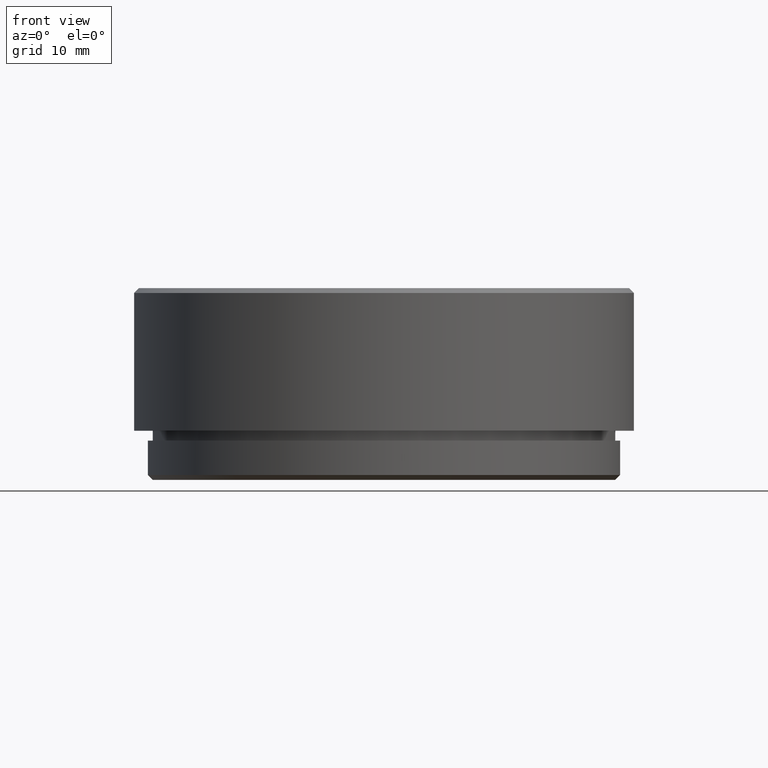
[diagram: clean part render]
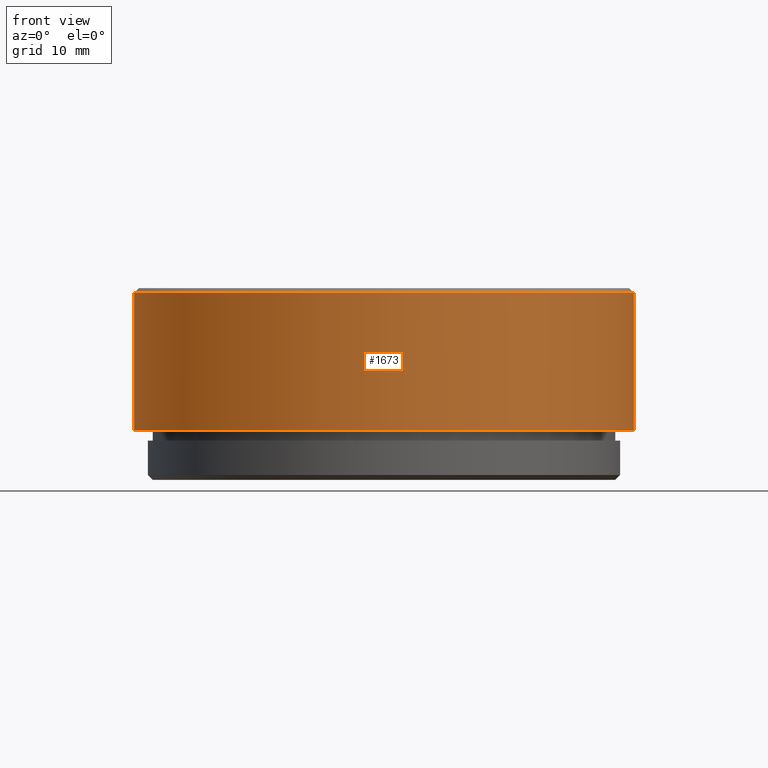
[diagram: same view with one face highlighted and labeled with its STEP entity id]
A machine part, front view. The second image highlights one B-rep face of the part: STEP entity #1673.
In plain terms, the highlighted cylindrical surface (partial cylindrical patch) has radius 25.4 mm, axis along (-0, -0, -1).
Its self-contained STEP definition (entity closure, byte-faithful):
#40 = VECTOR ( 'NONE', #1772, 1000.000000000000000 ) ;
#82 = LINE ( 'NONE', #678, #685 ) ;
#130 = DIRECTION ( 'NONE',  ( 0.000000000000000000, 0.000000000000000000, -1.000000000000000000 ) ) ;
#165 = ORIENTED_EDGE ( 'NONE', *, *, #1254, .T. ) ;
#179 = EDGE_CURVE ( 'NONE', #1473, #1601, #1626, .T. ) ;
#217 = AXIS2_PLACEMENT_3D ( 'NONE', #1438, #130, #720 ) ;
#220 = DIRECTION ( 'NONE',  ( 0.000000000000000000, 0.000000000000000000, -1.000000000000000000 ) ) ;
#244 = CARTESIAN_POINT ( 'NONE',  ( -25.39999999999999858, 0.000000000000000000, 18.99999999999998579 ) ) ;
#295 = CARTESIAN_POINT ( 'NONE',  ( 25.39999999999999858, 3.110602869834276865E-15, 5.000000000000000000 ) ) ;
#461 = DIRECTION ( 'NONE',  ( -1.000000000000000000, 0.000000000000000000, 0.000000000000000000 ) ) ;
#590 = CARTESIAN_POINT ( 'NONE',  ( 25.39999999999999858, 3.110602869834276865E-15, 19.50000000000000000 ) ) ;
#678 = CARTESIAN_POINT ( 'NONE',  ( -25.39999999999999858, 0.000000000000000000, 19.50000000000000000 ) ) ;
#685 = VECTOR ( 'NONE', #972, 1000.000000000000000 ) ;
#720 = DIRECTION ( 'NONE',  ( 1.000000000000000000, 0.000000000000000000, 0.000000000000000000 ) ) ;
#777 = CIRCLE ( 'NONE', #217, 25.39999999999999858 ) ;
#787 = ORIENTED_EDGE ( 'NONE', *, *, #179, .F. ) ;
#828 = VERTEX_POINT ( 'NONE', #244 ) ;
#901 = CARTESIAN_POINT ( 'NONE',  ( -25.39999999999999858, 0.000000000000000000, 5.000000000000000000 ) ) ;
#972 = DIRECTION ( 'NONE',  ( -0.000000000000000000, -0.000000000000000000, -1.000000000000000000 ) ) ;
#1029 = CARTESIAN_POINT ( 'NONE',  ( 0.000000000000000000, 0.000000000000000000, 19.50000000000000000 ) ) ;
#1055 = ORIENTED_EDGE ( 'NONE', *, *, #1395, .T. ) ;
#1195 = CARTESIAN_POINT ( 'NONE',  ( 25.39999999999999858, 3.110602869834276865E-15, 18.99999999999998579 ) ) ;
#1254 = EDGE_CURVE ( 'NONE', #828, #1574, #82, .T. ) ;
#1257 = CARTESIAN_POINT ( 'NONE',  ( 0.000000000000000000, 0.000000000000000000, 5.000000000000000000 ) ) ;
#1306 = DIRECTION ( 'NONE',  ( -0.000000000000000000, -0.000000000000000000, -1.000000000000000000 ) ) ;
#1345 = ORIENTED_EDGE ( 'NONE', *, *, #1899, .F. ) ;
#1395 = EDGE_CURVE ( 'NONE', #1473, #828, #777, .T. ) ;
#1413 = DIRECTION ( 'NONE',  ( -1.000000000000000000, 0.000000000000000000, 0.000000000000000000 ) ) ;
#1438 = CARTESIAN_POINT ( 'NONE',  ( 0.000000000000000000, 0.000000000000000000, 18.99999999999998579 ) ) ;
#1473 = VERTEX_POINT ( 'NONE', #1195 ) ;
#1574 = VERTEX_POINT ( 'NONE', #901 ) ;
#1601 = VERTEX_POINT ( 'NONE', #295 ) ;
#1611 = EDGE_LOOP ( 'NONE', ( #787, #1055, #165, #1345 ) ) ;
#1626 = LINE ( 'NONE', #590, #40 ) ;
#1633 = FACE_OUTER_BOUND ( 'NONE', #1611, .T. ) ;
#1650 = CYLINDRICAL_SURFACE ( 'NONE', #1779, 25.39999999999999858 ) ;
#1673 = ADVANCED_FACE ( 'NONE', ( #1633 ), #1650, .T. ) ;
#1697 = AXIS2_PLACEMENT_3D ( 'NONE', #1257, #220, #1413 ) ;
#1772 = DIRECTION ( 'NONE',  ( -0.000000000000000000, -0.000000000000000000, -1.000000000000000000 ) ) ;
#1779 = AXIS2_PLACEMENT_3D ( 'NONE', #1029, #1306, #461 ) ;
#1794 = CIRCLE ( 'NONE', #1697, 25.39999999999999858 ) ;
#1899 = EDGE_CURVE ( 'NONE', #1601, #1574, #1794, .T. ) ;